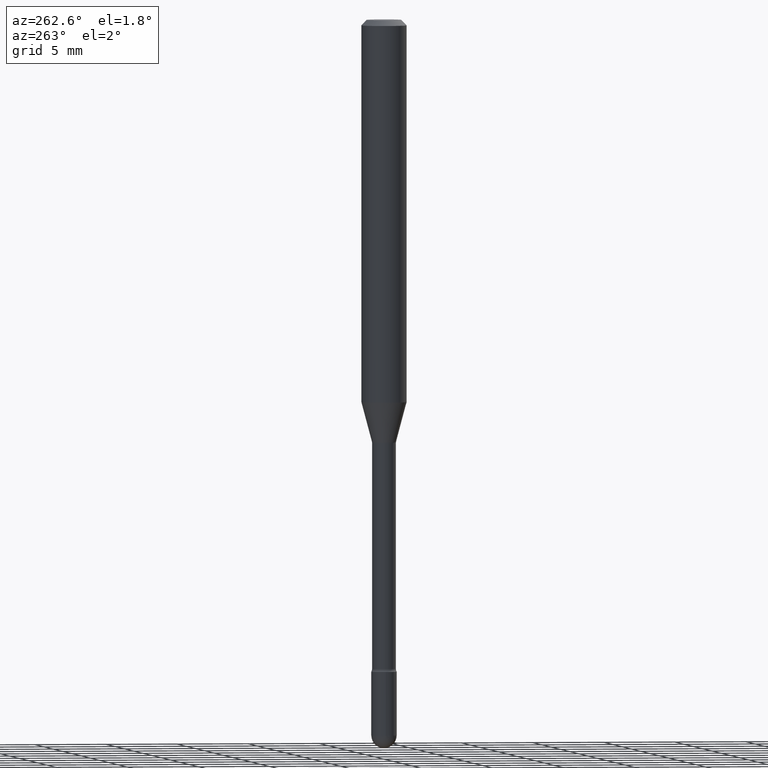
[diagram: clean part render]
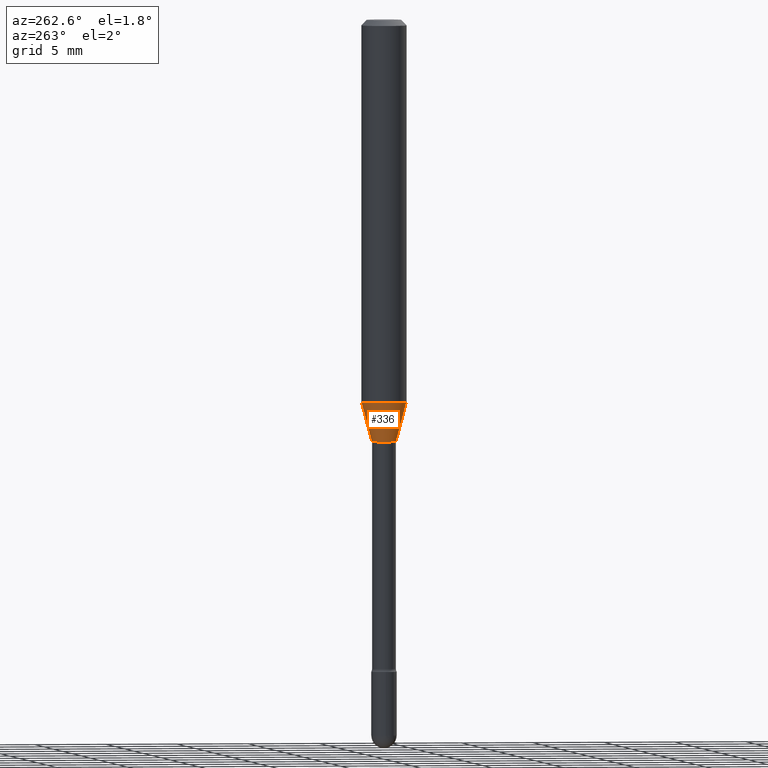
[diagram: same view with one face highlighted and labeled with its STEP entity id]
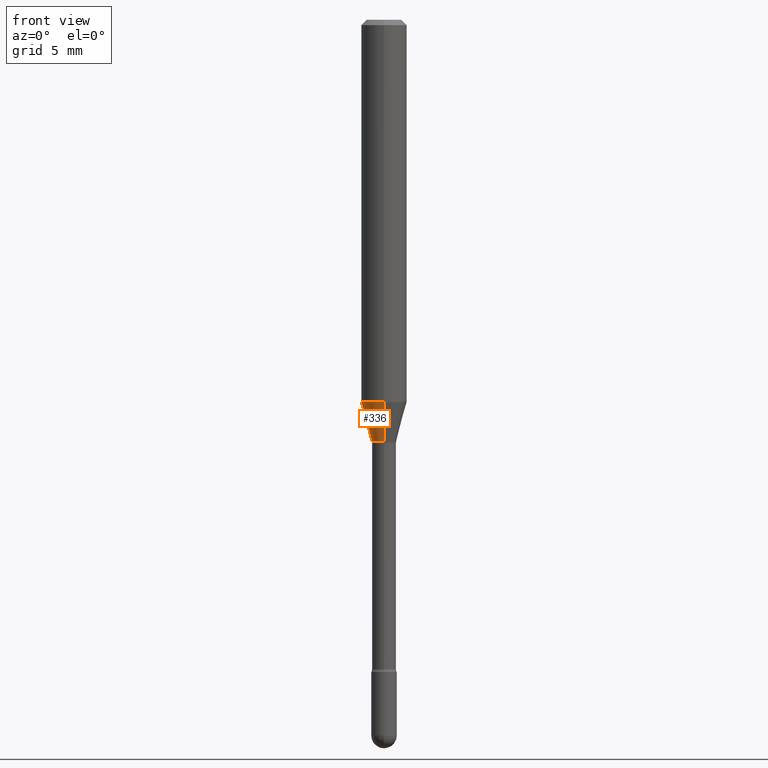
[diagram: same view with one face highlighted and labeled with its STEP entity id]
A machine part, auxiliary view. The second image highlights one B-rep face of the part: STEP entity #336.
A second angle (front view) of the same face is appended — the face is thin or edge-on in the first view.
In plain terms, the highlighted conical surface has half-angle 15 deg.
Its self-contained STEP definition (entity closure, byte-faithful):
#2 = CONICAL_SURFACE ( 'NONE', #402, 0.03341111260566397706, 0.2617993877991501850 ) ;
#22 = AXIS2_PLACEMENT_3D ( 'NONE', #517, #133, #272 ) ;
#23 = VERTEX_POINT ( 'NONE', #253 ) ;
#45 = DIRECTION ( 'NONE',  ( -6.982962677686266711E-15, -1.000000000000000000, 4.088232597799138123E-15 ) ) ;
#47 = VERTEX_POINT ( 'NONE', #478 ) ;
#91 = DIRECTION ( 'NONE',  ( -2.445482049201527511E-29, 3.491462374089927960E-15, 1.000000000000000000 ) ) ;
#120 = VECTOR ( 'NONE', #230, 39.37007874015749564 ) ;
#128 = EDGE_CURVE ( 'NONE', #23, #47, #414, .T. ) ;
#130 = ORIENTED_EDGE ( 'NONE', *, *, #452, .T. ) ;
#133 = DIRECTION ( 'NONE',  ( -2.445482049201527511E-29, 3.491462374089927960E-15, 1.000000000000000000 ) ) ;
#134 = CARTESIAN_POINT ( 'NONE',  ( 2.832094424435664218E-29, -4.043436395705936582E-15, -1.158092501787272965 ) ) ;
#137 = LINE ( 'NONE', #225, #120 ) ;
#157 = AXIS2_PLACEMENT_3D ( 'NONE', #212, #278, #496 ) ;
#192 = LINE ( 'NONE', #447, #554 ) ;
#206 = VERTEX_POINT ( 'NONE', #258 ) ;
#211 = ORIENTED_EDGE ( 'NONE', *, *, #483, .T. ) ;
#212 = CARTESIAN_POINT ( 'NONE',  ( 2.832094424435664218E-29, -4.043436395705936582E-15, -1.158092501787272965 ) ) ;
#225 = CARTESIAN_POINT ( 'NONE',  ( -2.333085523452963922E-16, -0.03341111260566802243, -1.158092501787272965 ) ) ;
#230 = DIRECTION ( 'NONE',  ( -1.807323732225329350E-15, -0.2588190451025180194, 0.9659258262890689783 ) ) ;
#242 = DIRECTION ( 'NONE',  ( 1.839019923739599526E-15, 0.2588190451025248473, 0.9659258262890670910 ) ) ;
#253 = CARTESIAN_POINT ( 'NONE',  ( 4.440892098500882541E-16, 0.06249999999999633626, -1.049531296095961741 ) ) ;
#256 = CIRCLE ( 'NONE', #157, 0.03341111260566397706 ) ;
#258 = CARTESIAN_POINT ( 'NONE',  ( -2.333085523452963922E-16, -0.03341111260566802243, -1.158092501787272965 ) ) ;
#272 = DIRECTION ( 'NONE',  ( -6.982962677686265922E-15, -1.000000000000000000, 4.370956789862821150E-15 ) ) ;
#278 = DIRECTION ( 'NONE',  ( -2.445482049201527511E-29, 3.491462374089927960E-15, 1.000000000000000000 ) ) ;
#316 = ORIENTED_EDGE ( 'NONE', *, *, #509, .F. ) ;
#336 = ADVANCED_FACE ( 'NONE', ( #520 ), #2, .T. ) ;
#375 = CARTESIAN_POINT ( 'NONE',  ( 3.407447217031445109E-16, 0.03341111260565993862, -1.158092501787273187 ) ) ;
#395 = VERTEX_POINT ( 'NONE', #375 ) ;
#400 = ORIENTED_EDGE ( 'NONE', *, *, #128, .F. ) ;
#402 = AXIS2_PLACEMENT_3D ( 'NONE', #134, #91, #45 ) ;
#414 = CIRCLE ( 'NONE', #22, 0.06250000000000000000 ) ;
#441 = EDGE_LOOP ( 'NONE', ( #316, #130, #211, #400 ) ) ;
#447 = CARTESIAN_POINT ( 'NONE',  ( 2.374002335562008169E-16, 0.03341111260565993862, -1.158092501787273187 ) ) ;
#452 = EDGE_CURVE ( 'NONE', #395, #206, #256, .T. ) ;
#478 = CARTESIAN_POINT ( 'NONE',  ( -4.364351673553658835E-16, -0.06250000000000366374, -1.049531296095961297 ) ) ;
#483 = EDGE_CURVE ( 'NONE', #206, #47, #137, .T. ) ;
#496 = DIRECTION ( 'NONE',  ( -6.982962677686266711E-15, -1.000000000000000000, 4.088232597799138123E-15 ) ) ;
#509 = EDGE_CURVE ( 'NONE', #395, #23, #192, .T. ) ;
#517 = CARTESIAN_POINT ( 'NONE',  ( 2.566609944677887031E-29, -3.664399030748884908E-15, -1.049531296095961519 ) ) ;
#520 = FACE_OUTER_BOUND ( 'NONE', #441, .T. ) ;
#554 = VECTOR ( 'NONE', #242, 39.37007874015748143 ) ;